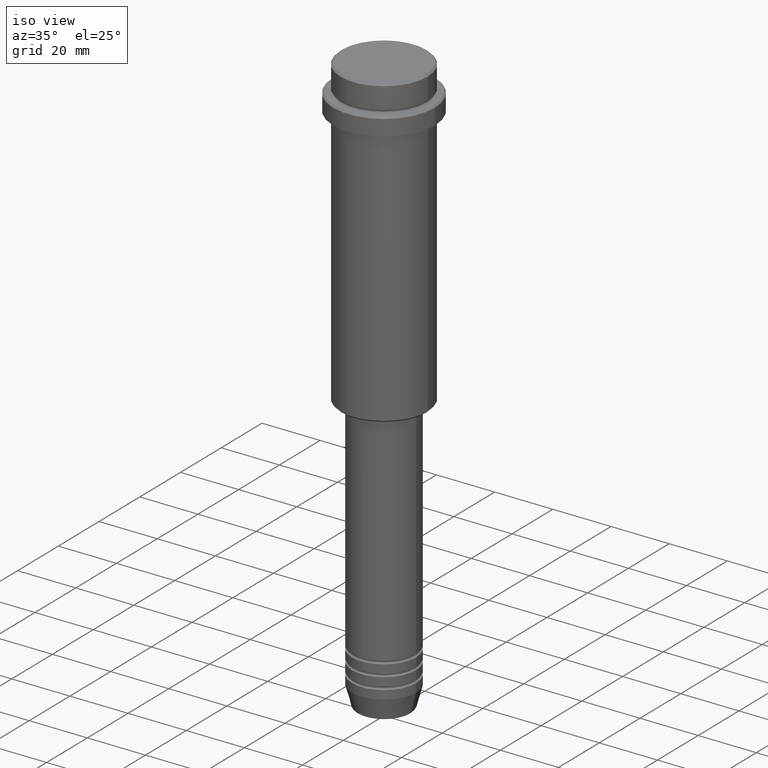
[diagram: clean part render]
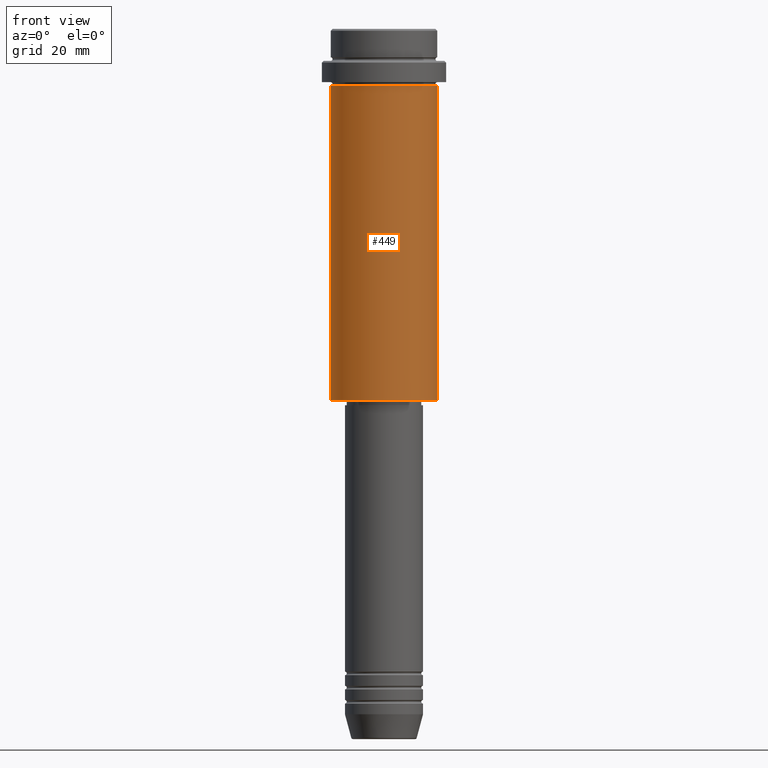
[diagram: tour spotlight — one face highlighted and labeled with its STEP entity id]
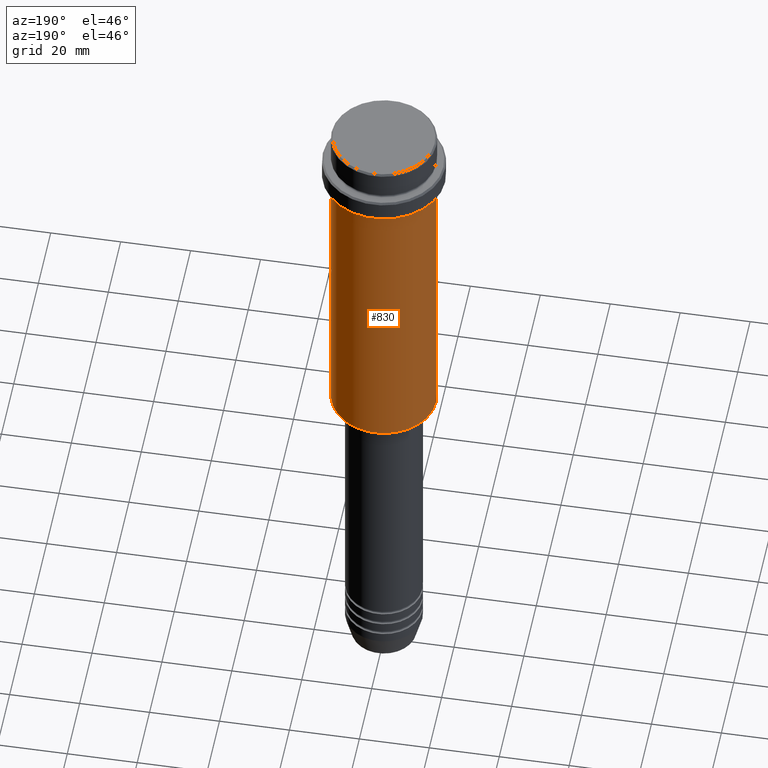
[diagram: tour spotlight — one face highlighted and labeled with its STEP entity id]
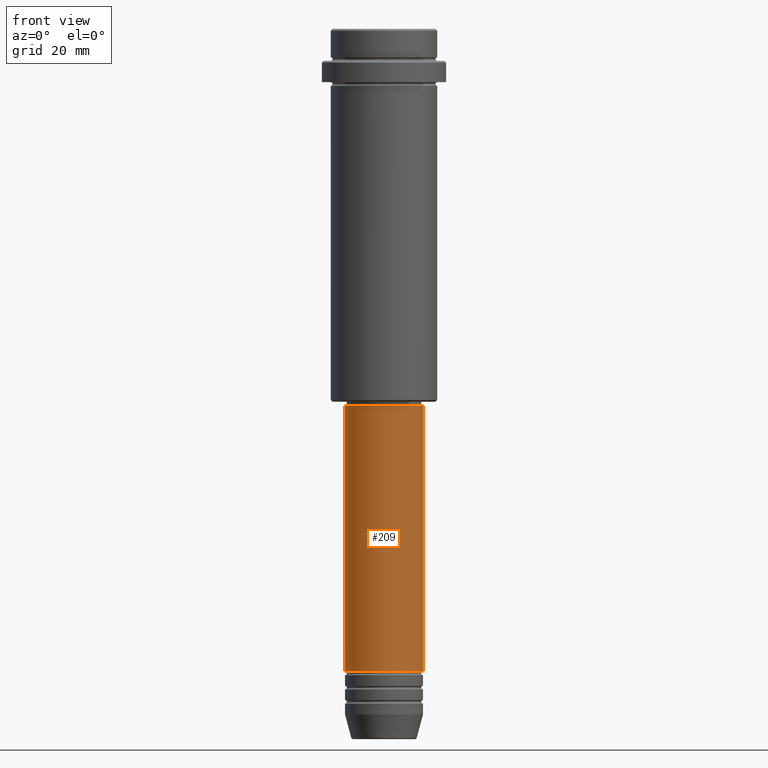
[diagram: tour spotlight — one face highlighted and labeled with its STEP entity id]
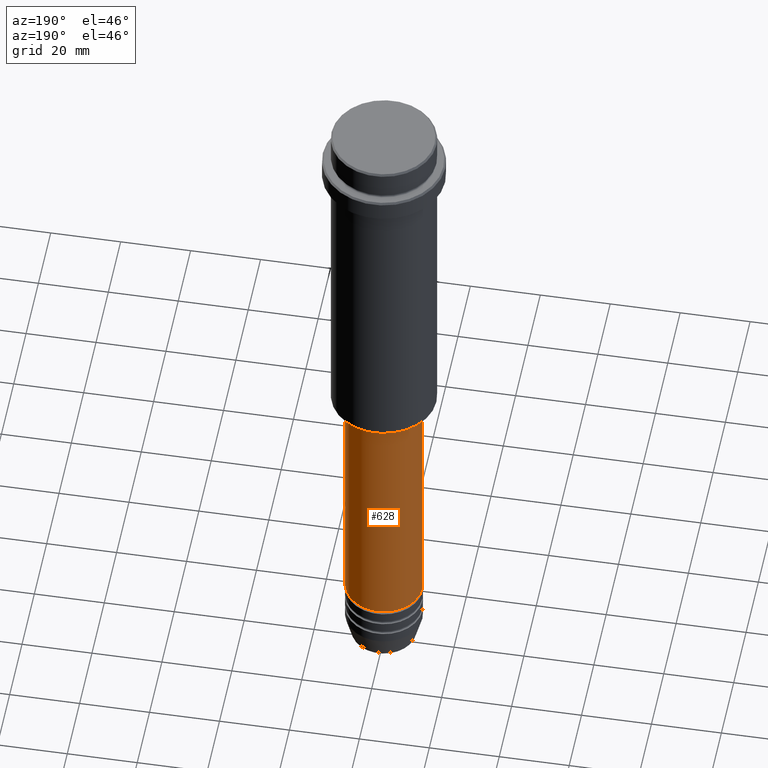
[diagram: tour spotlight — one face highlighted and labeled with its STEP entity id]
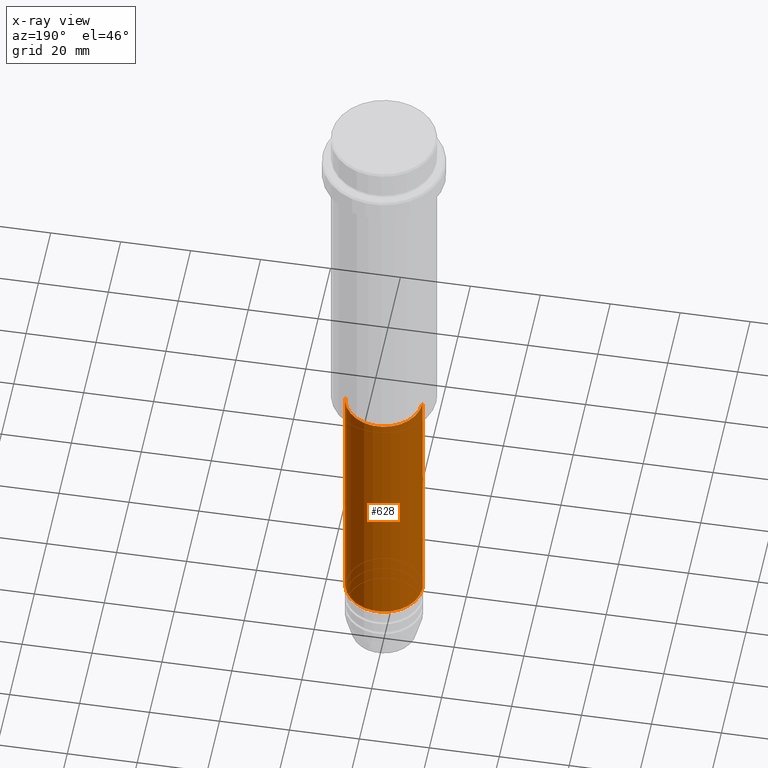
[diagram: x-ray of the same camera — body ghosted, this tour face saturated]
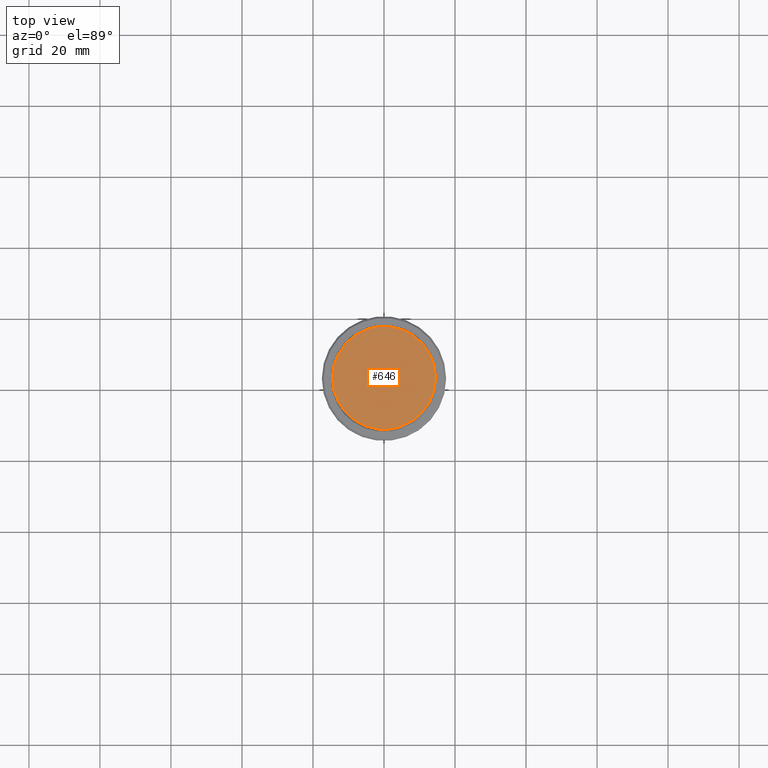
[diagram: tour spotlight — one face highlighted and labeled with its STEP entity id]
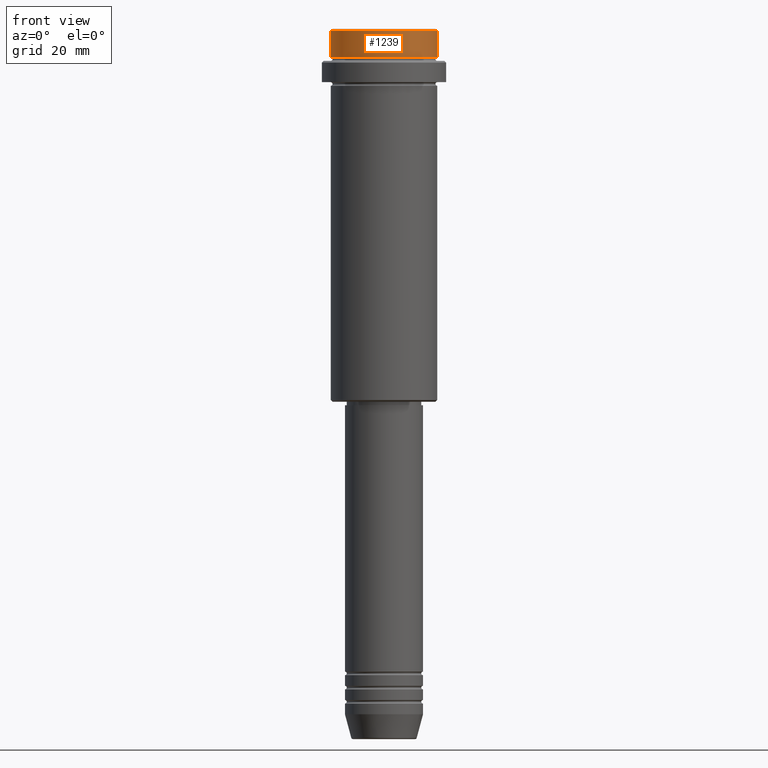
[diagram: tour spotlight — one face highlighted and labeled with its STEP entity id]
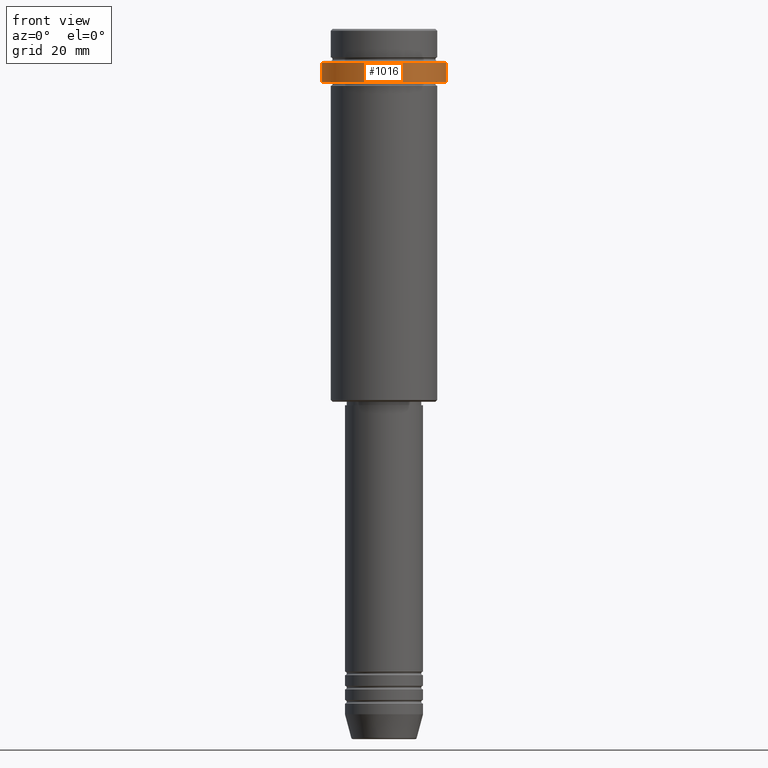
[diagram: tour spotlight — one face highlighted and labeled with its STEP entity id]
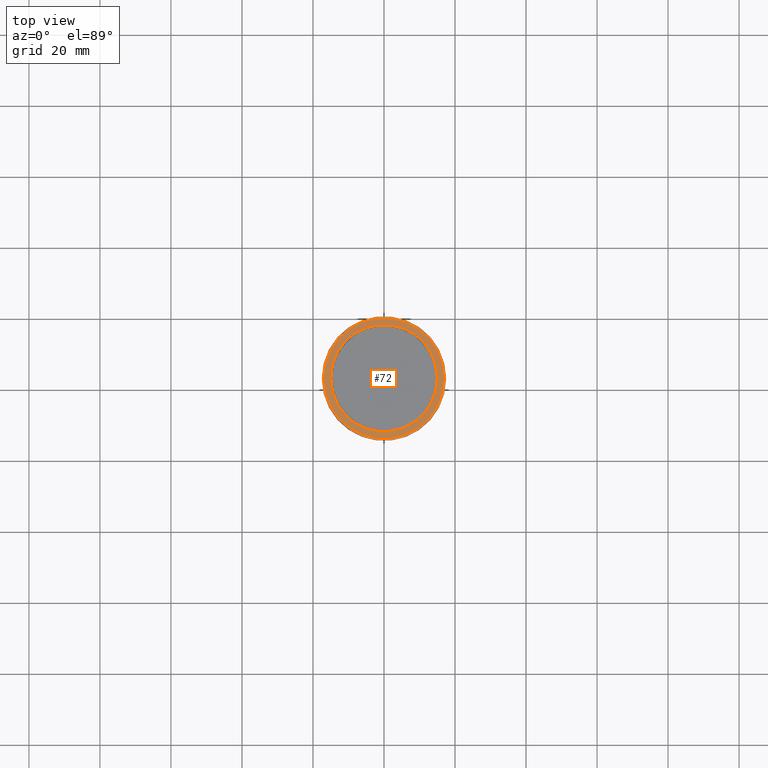
[diagram: tour spotlight — one face highlighted and labeled with its STEP entity id]
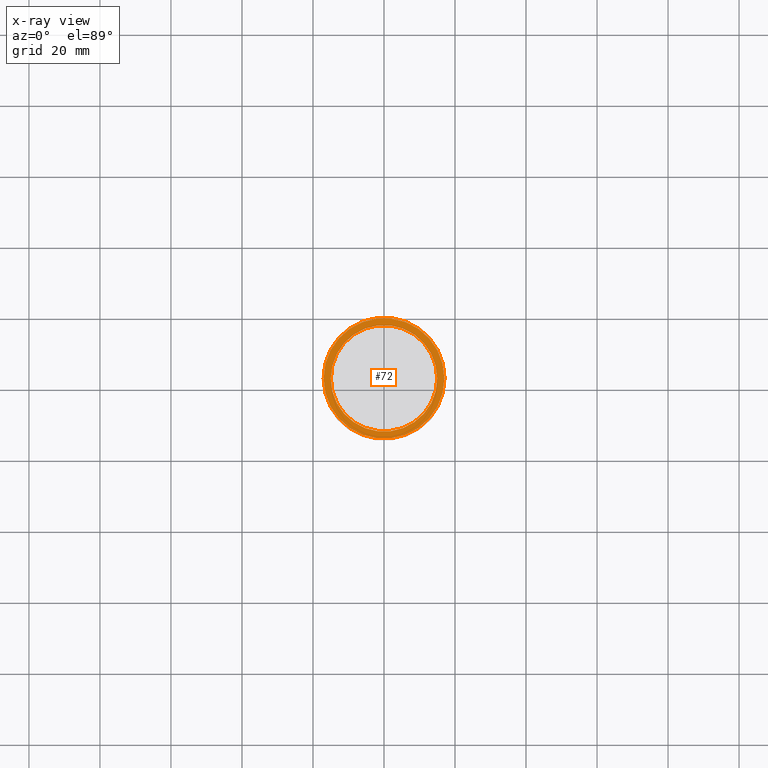
[diagram: x-ray of the same camera — body ghosted, this tour face saturated]
A machine part: a face-by-face anatomy tour. The part has 52 B-rep faces; the first image is the clean iso view, then the 8 largest visible faces are spotlighted one at a time (largest first), each with its STEP entity span.

Face 1 — front view, entity #449. In plain terms, the highlighted cylindrical surface (partial cylindrical patch) has radius 15 mm, axis along (-0, -0, 1).
Definition (entity closure, byte-faithful):
#15 = CARTESIAN_POINT ( 'NONE',  ( 15.00000000000000178, 0.000000000000000000, -16.00000000000000000 ) ) ;
#38 = CIRCLE ( 'NONE', #205, 15.00000000000000178 ) ;
#82 = DIRECTION ( 'NONE',  ( -0.000000000000000000, -0.000000000000000000, 1.000000000000000000 ) ) ;
#86 = AXIS2_PLACEMENT_3D ( 'NONE', #547, #92, #764 ) ;
#92 = DIRECTION ( 'NONE',  ( -0.000000000000000000, -0.000000000000000000, 1.000000000000000000 ) ) ;
#107 = VECTOR ( 'NONE', #471, 1000.000000000000000 ) ;
#116 = DIRECTION ( 'NONE',  ( 1.000000000000000000, 0.000000000000000000, 0.000000000000000000 ) ) ;
#150 = LINE ( 'NONE', #905, #107 ) ;
#163 = EDGE_CURVE ( 'NONE', #566, #244, #150, .T. ) ;
#205 = AXIS2_PLACEMENT_3D ( 'NONE', #526, #82, #116 ) ;
#218 = FACE_OUTER_BOUND ( 'NONE', #261, .T. ) ;
#244 = VERTEX_POINT ( 'NONE', #1040 ) ;
#261 = EDGE_LOOP ( 'NONE', ( #1036, #946, #1197, #1117 ) ) ;
#340 = CARTESIAN_POINT ( 'NONE',  ( 15.00000000000000000, 0.000000000000000000, -104.5000000000000284 ) ) ;
#412 = CIRCLE ( 'NONE', #480, 15.00000000000000000 ) ;
#429 = EDGE_CURVE ( 'NONE', #244, #984, #38, .T. ) ;
#434 = CYLINDRICAL_SURFACE ( 'NONE', #86, 15.00000000000000000 ) ;
#449 = ADVANCED_FACE ( 'NONE', ( #218 ), #434, .T. ) ;
#471 = DIRECTION ( 'NONE',  ( -0.000000000000000000, -0.000000000000000000, 1.000000000000000000 ) ) ;
#480 = AXIS2_PLACEMENT_3D ( 'NONE', #1170, #1306, #949 ) ;
#526 = CARTESIAN_POINT ( 'NONE',  ( 0.000000000000000000, 0.000000000000000000, -16.00000000000000000 ) ) ;
#547 = CARTESIAN_POINT ( 'NONE',  ( 0.000000000000000000, 0.000000000000000000, 0.000000000000000000 ) ) ;
#566 = VERTEX_POINT ( 'NONE', #576 ) ;
#576 = CARTESIAN_POINT ( 'NONE',  ( -15.00000000000000000, 1.836970198721029589E-15, -104.5000000000000284 ) ) ;
#658 = CARTESIAN_POINT ( 'NONE',  ( 15.00000000000000000, 0.000000000000000000, 0.000000000000000000 ) ) ;
#679 = LINE ( 'NONE', #658, #1189 ) ;
#764 = DIRECTION ( 'NONE',  ( 1.000000000000000000, 0.000000000000000000, 0.000000000000000000 ) ) ;
#788 = EDGE_CURVE ( 'NONE', #566, #1311, #412, .T. ) ;
#905 = CARTESIAN_POINT ( 'NONE',  ( -15.00000000000000000, 1.836970198721029589E-15, 0.000000000000000000 ) ) ;
#946 = ORIENTED_EDGE ( 'NONE', *, *, #788, .T. ) ;
#949 = DIRECTION ( 'NONE',  ( -1.000000000000000000, 0.000000000000000000, 0.000000000000000000 ) ) ;
#984 = VERTEX_POINT ( 'NONE', #15 ) ;
#1002 = EDGE_CURVE ( 'NONE', #1311, #984, #679, .T. ) ;
#1036 = ORIENTED_EDGE ( 'NONE', *, *, #163, .F. ) ;
#1040 = CARTESIAN_POINT ( 'NONE',  ( -15.00000000000000355, 1.836970198721029983E-15, -16.00000000000000000 ) ) ;
#1117 = ORIENTED_EDGE ( 'NONE', *, *, #429, .F. ) ;
#1126 = DIRECTION ( 'NONE',  ( -0.000000000000000000, -0.000000000000000000, 1.000000000000000000 ) ) ;
#1170 = CARTESIAN_POINT ( 'NONE',  ( 0.000000000000000000, 0.000000000000000000, -104.5000000000000284 ) ) ;
#1189 = VECTOR ( 'NONE', #1126, 1000.000000000000000 ) ;
#1197 = ORIENTED_EDGE ( 'NONE', *, *, #1002, .T. ) ;
#1306 = DIRECTION ( 'NONE',  ( -0.000000000000000000, -0.000000000000000000, 1.000000000000000000 ) ) ;
#1311 = VERTEX_POINT ( 'NONE', #340 ) ;

Face 2 — auxiliary view, entity #830. In plain terms, the highlighted cylindrical surface (partial cylindrical patch) has radius 15 mm, axis along (-0, -0, 1).
Definition (entity closure, byte-faithful):
#15 = CARTESIAN_POINT ( 'NONE',  ( 15.00000000000000178, 0.000000000000000000, -16.00000000000000000 ) ) ;
#107 = VECTOR ( 'NONE', #471, 1000.000000000000000 ) ;
#150 = LINE ( 'NONE', #905, #107 ) ;
#163 = EDGE_CURVE ( 'NONE', #566, #244, #150, .T. ) ;
#195 = CYLINDRICAL_SURFACE ( 'NONE', #1364, 15.00000000000000000 ) ;
#200 = DIRECTION ( 'NONE',  ( 1.000000000000000000, 0.000000000000000000, 0.000000000000000000 ) ) ;
#208 = AXIS2_PLACEMENT_3D ( 'NONE', #611, #284, #1024 ) ;
#222 = ORIENTED_EDGE ( 'NONE', *, *, #1048, .T. ) ;
#244 = VERTEX_POINT ( 'NONE', #1040 ) ;
#246 = DIRECTION ( 'NONE',  ( -1.000000000000000000, 0.000000000000000000, 0.000000000000000000 ) ) ;
#284 = DIRECTION ( 'NONE',  ( -0.000000000000000000, -0.000000000000000000, 1.000000000000000000 ) ) ;
#320 = CARTESIAN_POINT ( 'NONE',  ( 0.000000000000000000, 0.000000000000000000, 0.000000000000000000 ) ) ;
#340 = CARTESIAN_POINT ( 'NONE',  ( 15.00000000000000000, 0.000000000000000000, -104.5000000000000284 ) ) ;
#354 = DIRECTION ( 'NONE',  ( -0.000000000000000000, -0.000000000000000000, 1.000000000000000000 ) ) ;
#471 = DIRECTION ( 'NONE',  ( -0.000000000000000000, -0.000000000000000000, 1.000000000000000000 ) ) ;
#519 = ORIENTED_EDGE ( 'NONE', *, *, #690, .F. ) ;
#566 = VERTEX_POINT ( 'NONE', #576 ) ;
#576 = CARTESIAN_POINT ( 'NONE',  ( -15.00000000000000000, 1.836970198721029589E-15, -104.5000000000000284 ) ) ;
#611 = CARTESIAN_POINT ( 'NONE',  ( 0.000000000000000000, 0.000000000000000000, -16.00000000000000000 ) ) ;
#640 = AXIS2_PLACEMENT_3D ( 'NONE', #1331, #354, #246 ) ;
#658 = CARTESIAN_POINT ( 'NONE',  ( 15.00000000000000000, 0.000000000000000000, 0.000000000000000000 ) ) ;
#667 = EDGE_LOOP ( 'NONE', ( #222, #871, #519, #725 ) ) ;
#679 = LINE ( 'NONE', #658, #1189 ) ;
#690 = EDGE_CURVE ( 'NONE', #984, #244, #1101, .T. ) ;
#725 = ORIENTED_EDGE ( 'NONE', *, *, #1002, .F. ) ;
#768 = DIRECTION ( 'NONE',  ( -0.000000000000000000, -0.000000000000000000, 1.000000000000000000 ) ) ;
#830 = ADVANCED_FACE ( 'NONE', ( #1397 ), #195, .T. ) ;
#871 = ORIENTED_EDGE ( 'NONE', *, *, #163, .T. ) ;
#905 = CARTESIAN_POINT ( 'NONE',  ( -15.00000000000000000, 1.836970198721029589E-15, 0.000000000000000000 ) ) ;
#984 = VERTEX_POINT ( 'NONE', #15 ) ;
#1002 = EDGE_CURVE ( 'NONE', #1311, #984, #679, .T. ) ;
#1024 = DIRECTION ( 'NONE',  ( 1.000000000000000000, 0.000000000000000000, 0.000000000000000000 ) ) ;
#1040 = CARTESIAN_POINT ( 'NONE',  ( -15.00000000000000355, 1.836970198721029983E-15, -16.00000000000000000 ) ) ;
#1048 = EDGE_CURVE ( 'NONE', #1311, #566, #1412, .T. ) ;
#1101 = CIRCLE ( 'NONE', #208, 15.00000000000000178 ) ;
#1126 = DIRECTION ( 'NONE',  ( -0.000000000000000000, -0.000000000000000000, 1.000000000000000000 ) ) ;
#1189 = VECTOR ( 'NONE', #1126, 1000.000000000000000 ) ;
#1311 = VERTEX_POINT ( 'NONE', #340 ) ;
#1331 = CARTESIAN_POINT ( 'NONE',  ( 0.000000000000000000, 0.000000000000000000, -104.5000000000000284 ) ) ;
#1364 = AXIS2_PLACEMENT_3D ( 'NONE', #320, #768, #200 ) ;
#1397 = FACE_OUTER_BOUND ( 'NONE', #667, .T. ) ;
#1412 = CIRCLE ( 'NONE', #640, 15.00000000000000000 ) ;

Face 3 — front view, entity #209. In plain terms, the highlighted cylindrical surface (partial cylindrical patch) has radius 11 mm, axis along (-0, -0, 1).
Definition (entity closure, byte-faithful):
#63 = VERTEX_POINT ( 'NONE', #974 ) ;
#161 = EDGE_LOOP ( 'NONE', ( #579, #615, #785, #221 ) ) ;
#209 = ADVANCED_FACE ( 'NONE', ( #264 ), #369, .T. ) ;
#217 = EDGE_CURVE ( 'NONE', #800, #63, #1116, .T. ) ;
#221 = ORIENTED_EDGE ( 'NONE', *, *, #328, .F. ) ;
#264 = FACE_OUTER_BOUND ( 'NONE', #161, .T. ) ;
#328 = EDGE_CURVE ( 'NONE', #63, #1294, #1254, .T. ) ;
#369 = CYLINDRICAL_SURFACE ( 'NONE', #936, 11.00000000000000000 ) ;
#374 = CARTESIAN_POINT ( 'NONE',  ( -11.00000000000000000, 1.347111479062088405E-15, 0.000000000000000000 ) ) ;
#446 = CARTESIAN_POINT ( 'NONE',  ( 10.99999999999999822, 0.000000000000000000, -106.0000000000000142 ) ) ;
#489 = EDGE_CURVE ( 'NONE', #840, #1294, #746, .T. ) ;
#533 = CARTESIAN_POINT ( 'NONE',  ( 0.000000000000000000, 0.000000000000000000, -180.9999999999998863 ) ) ;
#579 = ORIENTED_EDGE ( 'NONE', *, *, #217, .F. ) ;
#615 = ORIENTED_EDGE ( 'NONE', *, *, #796, .T. ) ;
#630 = CARTESIAN_POINT ( 'NONE',  ( 11.00000000000000000, 0.000000000000000000, -180.9999999999998863 ) ) ;
#676 = DIRECTION ( 'NONE',  ( -0.000000000000000000, -0.000000000000000000, 1.000000000000000000 ) ) ;
#705 = AXIS2_PLACEMENT_3D ( 'NONE', #716, #1154, #1034 ) ;
#716 = CARTESIAN_POINT ( 'NONE',  ( 0.000000000000000000, 0.000000000000000000, -106.0000000000000142 ) ) ;
#746 = LINE ( 'NONE', #1416, #891 ) ;
#785 = ORIENTED_EDGE ( 'NONE', *, *, #489, .T. ) ;
#796 = EDGE_CURVE ( 'NONE', #800, #840, #1323, .T. ) ;
#800 = VERTEX_POINT ( 'NONE', #1074 ) ;
#840 = VERTEX_POINT ( 'NONE', #630 ) ;
#877 = DIRECTION ( 'NONE',  ( -0.000000000000000000, -0.000000000000000000, 1.000000000000000000 ) ) ;
#891 = VECTOR ( 'NONE', #877, 1000.000000000000000 ) ;
#936 = AXIS2_PLACEMENT_3D ( 'NONE', #1222, #676, #1234 ) ;
#974 = CARTESIAN_POINT ( 'NONE',  ( -10.99999999999999822, 1.347111479062088207E-15, -106.0000000000000142 ) ) ;
#1020 = DIRECTION ( 'NONE',  ( -0.000000000000000000, -0.000000000000000000, 1.000000000000000000 ) ) ;
#1034 = DIRECTION ( 'NONE',  ( 1.000000000000000000, 0.000000000000000000, 0.000000000000000000 ) ) ;
#1074 = CARTESIAN_POINT ( 'NONE',  ( -11.00000000000000000, 1.347111479062088405E-15, -180.9999999999998863 ) ) ;
#1097 = AXIS2_PLACEMENT_3D ( 'NONE', #533, #1191, #1283 ) ;
#1116 = LINE ( 'NONE', #374, #1279 ) ;
#1154 = DIRECTION ( 'NONE',  ( -0.000000000000000000, -0.000000000000000000, 1.000000000000000000 ) ) ;
#1191 = DIRECTION ( 'NONE',  ( -0.000000000000000000, -0.000000000000000000, 1.000000000000000000 ) ) ;
#1222 = CARTESIAN_POINT ( 'NONE',  ( 0.000000000000000000, 0.000000000000000000, 0.000000000000000000 ) ) ;
#1234 = DIRECTION ( 'NONE',  ( 1.000000000000000000, 0.000000000000000000, 0.000000000000000000 ) ) ;
#1254 = CIRCLE ( 'NONE', #705, 10.99999999999999822 ) ;
#1279 = VECTOR ( 'NONE', #1020, 1000.000000000000000 ) ;
#1283 = DIRECTION ( 'NONE',  ( 1.000000000000000000, 0.000000000000000000, 0.000000000000000000 ) ) ;
#1294 = VERTEX_POINT ( 'NONE', #446 ) ;
#1323 = CIRCLE ( 'NONE', #1097, 11.00000000000000000 ) ;
#1416 = CARTESIAN_POINT ( 'NONE',  ( 11.00000000000000000, 0.000000000000000000, 0.000000000000000000 ) ) ;

Face 4 — auxiliary view, entity #628. An x-ray twin of the same camera follows (body ghosted, this face saturated) — the face is partly hidden behind the body. In plain terms, the highlighted cylindrical surface (partial cylindrical patch) has radius 11 mm, axis along (-0, -0, 1).
Definition (entity closure, byte-faithful):
#19 = DIRECTION ( 'NONE',  ( 1.000000000000000000, 0.000000000000000000, 0.000000000000000000 ) ) ;
#20 = EDGE_CURVE ( 'NONE', #1294, #63, #272, .T. ) ;
#63 = VERTEX_POINT ( 'NONE', #974 ) ;
#217 = EDGE_CURVE ( 'NONE', #800, #63, #1116, .T. ) ;
#225 = DIRECTION ( 'NONE',  ( -0.000000000000000000, -0.000000000000000000, 1.000000000000000000 ) ) ;
#250 = ORIENTED_EDGE ( 'NONE', *, *, #217, .T. ) ;
#258 = CYLINDRICAL_SURFACE ( 'NONE', #462, 11.00000000000000000 ) ;
#270 = ORIENTED_EDGE ( 'NONE', *, *, #1110, .T. ) ;
#272 = CIRCLE ( 'NONE', #1096, 10.99999999999999822 ) ;
#346 = EDGE_LOOP ( 'NONE', ( #270, #250, #744, #1330 ) ) ;
#374 = CARTESIAN_POINT ( 'NONE',  ( -11.00000000000000000, 1.347111479062088405E-15, 0.000000000000000000 ) ) ;
#446 = CARTESIAN_POINT ( 'NONE',  ( 10.99999999999999822, 0.000000000000000000, -106.0000000000000142 ) ) ;
#462 = AXIS2_PLACEMENT_3D ( 'NONE', #786, #1019, #19 ) ;
#481 = DIRECTION ( 'NONE',  ( -0.000000000000000000, -0.000000000000000000, 1.000000000000000000 ) ) ;
#489 = EDGE_CURVE ( 'NONE', #840, #1294, #746, .T. ) ;
#628 = ADVANCED_FACE ( 'NONE', ( #1107 ), #258, .T. ) ;
#630 = CARTESIAN_POINT ( 'NONE',  ( 11.00000000000000000, 0.000000000000000000, -180.9999999999998863 ) ) ;
#744 = ORIENTED_EDGE ( 'NONE', *, *, #20, .F. ) ;
#746 = LINE ( 'NONE', #1416, #891 ) ;
#765 = CARTESIAN_POINT ( 'NONE',  ( 0.000000000000000000, 0.000000000000000000, -106.0000000000000142 ) ) ;
#786 = CARTESIAN_POINT ( 'NONE',  ( 0.000000000000000000, 0.000000000000000000, 0.000000000000000000 ) ) ;
#800 = VERTEX_POINT ( 'NONE', #1074 ) ;
#840 = VERTEX_POINT ( 'NONE', #630 ) ;
#877 = DIRECTION ( 'NONE',  ( -0.000000000000000000, -0.000000000000000000, 1.000000000000000000 ) ) ;
#891 = VECTOR ( 'NONE', #877, 1000.000000000000000 ) ;
#927 = CARTESIAN_POINT ( 'NONE',  ( 0.000000000000000000, 0.000000000000000000, -180.9999999999998863 ) ) ;
#937 = AXIS2_PLACEMENT_3D ( 'NONE', #927, #481, #1242 ) ;
#974 = CARTESIAN_POINT ( 'NONE',  ( -10.99999999999999822, 1.347111479062088207E-15, -106.0000000000000142 ) ) ;
#1019 = DIRECTION ( 'NONE',  ( -0.000000000000000000, -0.000000000000000000, 1.000000000000000000 ) ) ;
#1020 = DIRECTION ( 'NONE',  ( -0.000000000000000000, -0.000000000000000000, 1.000000000000000000 ) ) ;
#1074 = CARTESIAN_POINT ( 'NONE',  ( -11.00000000000000000, 1.347111479062088405E-15, -180.9999999999998863 ) ) ;
#1096 = AXIS2_PLACEMENT_3D ( 'NONE', #765, #225, #1394 ) ;
#1107 = FACE_OUTER_BOUND ( 'NONE', #346, .T. ) ;
#1110 = EDGE_CURVE ( 'NONE', #840, #800, #1142, .T. ) ;
#1116 = LINE ( 'NONE', #374, #1279 ) ;
#1142 = CIRCLE ( 'NONE', #937, 11.00000000000000000 ) ;
#1242 = DIRECTION ( 'NONE',  ( 1.000000000000000000, 0.000000000000000000, 0.000000000000000000 ) ) ;
#1279 = VECTOR ( 'NONE', #1020, 1000.000000000000000 ) ;
#1294 = VERTEX_POINT ( 'NONE', #446 ) ;
#1330 = ORIENTED_EDGE ( 'NONE', *, *, #489, .F. ) ;
#1394 = DIRECTION ( 'NONE',  ( 1.000000000000000000, 0.000000000000000000, 0.000000000000000000 ) ) ;
#1416 = CARTESIAN_POINT ( 'NONE',  ( 11.00000000000000000, 0.000000000000000000, 0.000000000000000000 ) ) ;

Face 5 — top view, entity #646. In plain terms, the highlighted planar face has unit normal (0, -0, 1).
Definition (entity closure, byte-faithful):
#78 = CARTESIAN_POINT ( 'NONE',  ( -14.49999999999998401, 0.000000000000000000, 0.000000000000000000 ) ) ;
#122 = CARTESIAN_POINT ( 'NONE',  ( 0.000000000000000000, 0.000000000000000000, 0.000000000000000000 ) ) ;
#198 = CARTESIAN_POINT ( 'NONE',  ( 14.49999999999998401, 1.806354028742345013E-15, 0.000000000000000000 ) ) ;
#304 = AXIS2_PLACEMENT_3D ( 'NONE', #122, #457, #1275 ) ;
#386 = CIRCLE ( 'NONE', #934, 14.49999999999998401 ) ;
#395 = ORIENTED_EDGE ( 'NONE', *, *, #779, .T. ) ;
#401 = ORIENTED_EDGE ( 'NONE', *, *, #810, .T. ) ;
#411 = CARTESIAN_POINT ( 'NONE',  ( 0.000000000000000000, 0.000000000000000000, 0.000000000000000000 ) ) ;
#457 = DIRECTION ( 'NONE',  ( 0.000000000000000000, -0.000000000000000000, 1.000000000000000000 ) ) ;
#502 = CARTESIAN_POINT ( 'NONE',  ( 0.000000000000000000, 0.000000000000000000, 0.000000000000000000 ) ) ;
#646 = ADVANCED_FACE ( 'NONE', ( #790 ), #669, .T. ) ;
#669 = PLANE ( 'NONE',  #304 ) ;
#779 = EDGE_CURVE ( 'NONE', #1208, #1174, #1410, .T. ) ;
#790 = FACE_OUTER_BOUND ( 'NONE', #1374, .T. ) ;
#810 = EDGE_CURVE ( 'NONE', #1174, #1208, #386, .T. ) ;
#838 = DIRECTION ( 'NONE',  ( 1.000000000000000000, 0.000000000000000000, 0.000000000000000000 ) ) ;
#844 = DIRECTION ( 'NONE',  ( -0.000000000000000000, -0.000000000000000000, 1.000000000000000000 ) ) ;
#889 = AXIS2_PLACEMENT_3D ( 'NONE', #502, #939, #838 ) ;
#934 = AXIS2_PLACEMENT_3D ( 'NONE', #411, #844, #1081 ) ;
#939 = DIRECTION ( 'NONE',  ( -0.000000000000000000, -0.000000000000000000, 1.000000000000000000 ) ) ;
#1081 = DIRECTION ( 'NONE',  ( 1.000000000000000000, 0.000000000000000000, 0.000000000000000000 ) ) ;
#1174 = VERTEX_POINT ( 'NONE', #198 ) ;
#1208 = VERTEX_POINT ( 'NONE', #78 ) ;
#1275 = DIRECTION ( 'NONE',  ( 1.000000000000000000, 0.000000000000000000, 0.000000000000000000 ) ) ;
#1374 = EDGE_LOOP ( 'NONE', ( #395, #401 ) ) ;
#1410 = CIRCLE ( 'NONE', #889, 14.49999999999998401 ) ;

Face 6 — front view, entity #1239. In plain terms, the highlighted cylindrical surface (partial cylindrical patch) has radius 15 mm, axis along (-0, -0, 1).
Definition (entity closure, byte-faithful):
#35 = DIRECTION ( 'NONE',  ( -0.000000000000000000, -0.000000000000000000, 1.000000000000000000 ) ) ;
#41 = AXIS2_PLACEMENT_3D ( 'NONE', #1055, #918, #699 ) ;
#43 = ORIENTED_EDGE ( 'NONE', *, *, #140, .T. ) ;
#45 = CARTESIAN_POINT ( 'NONE',  ( -15.00000000000000000, 1.836970198721029589E-15, -7.999999999999998224 ) ) ;
#47 = CARTESIAN_POINT ( 'NONE',  ( 15.00000000000000000, 0.000000000000000000, -7.999999999999998224 ) ) ;
#64 = AXIS2_PLACEMENT_3D ( 'NONE', #1130, #35, #1401 ) ;
#140 = EDGE_CURVE ( 'NONE', #353, #1043, #890, .T. ) ;
#170 = CARTESIAN_POINT ( 'NONE',  ( 0.000000000000000000, 0.000000000000000000, -0.5000000000000108802 ) ) ;
#185 = ORIENTED_EDGE ( 'NONE', *, *, #1402, .F. ) ;
#237 = DIRECTION ( 'NONE',  ( -0.000000000000000000, -0.000000000000000000, 1.000000000000000000 ) ) ;
#271 = DIRECTION ( 'NONE',  ( 0.000000000000000000, 0.000000000000000000, -1.000000000000000000 ) ) ;
#278 = CIRCLE ( 'NONE', #41, 15.00000000000000000 ) ;
#353 = VERTEX_POINT ( 'NONE', #47 ) ;
#448 = ORIENTED_EDGE ( 'NONE', *, *, #654, .T. ) ;
#455 = VERTEX_POINT ( 'NONE', #1393 ) ;
#466 = CARTESIAN_POINT ( 'NONE',  ( 15.00000000000000000, 0.000000000000000000, 0.000000000000000000 ) ) ;
#531 = FACE_OUTER_BOUND ( 'NONE', #1141, .T. ) ;
#553 = AXIS2_PLACEMENT_3D ( 'NONE', #170, #271, #610 ) ;
#559 = LINE ( 'NONE', #872, #1030 ) ;
#610 = DIRECTION ( 'NONE',  ( 1.000000000000000000, 0.000000000000000000, 0.000000000000000000 ) ) ;
#623 = ORIENTED_EDGE ( 'NONE', *, *, #1187, .T. ) ;
#654 = EDGE_CURVE ( 'NONE', #1086, #353, #278, .T. ) ;
#693 = CYLINDRICAL_SURFACE ( 'NONE', #64, 15.00000000000000000 ) ;
#699 = DIRECTION ( 'NONE',  ( 1.000000000000000000, 0.000000000000000000, 0.000000000000000000 ) ) ;
#872 = CARTESIAN_POINT ( 'NONE',  ( -15.00000000000000000, 1.836970198721029589E-15, 0.000000000000000000 ) ) ;
#890 = LINE ( 'NONE', #466, #1165 ) ;
#918 = DIRECTION ( 'NONE',  ( -0.000000000000000000, -0.000000000000000000, 1.000000000000000000 ) ) ;
#1001 = CARTESIAN_POINT ( 'NONE',  ( 15.00000000000000000, 0.000000000000000000, -0.5000000000000108802 ) ) ;
#1030 = VECTOR ( 'NONE', #1218, 1000.000000000000000 ) ;
#1043 = VERTEX_POINT ( 'NONE', #1001 ) ;
#1055 = CARTESIAN_POINT ( 'NONE',  ( 0.000000000000000000, 0.000000000000000000, -7.999999999999998224 ) ) ;
#1086 = VERTEX_POINT ( 'NONE', #45 ) ;
#1130 = CARTESIAN_POINT ( 'NONE',  ( 0.000000000000000000, 0.000000000000000000, 0.000000000000000000 ) ) ;
#1141 = EDGE_LOOP ( 'NONE', ( #185, #448, #43, #623 ) ) ;
#1165 = VECTOR ( 'NONE', #237, 1000.000000000000000 ) ;
#1187 = EDGE_CURVE ( 'NONE', #1043, #455, #1256, .T. ) ;
#1218 = DIRECTION ( 'NONE',  ( -0.000000000000000000, -0.000000000000000000, 1.000000000000000000 ) ) ;
#1239 = ADVANCED_FACE ( 'NONE', ( #531 ), #693, .T. ) ;
#1256 = CIRCLE ( 'NONE', #553, 15.00000000000000000 ) ;
#1393 = CARTESIAN_POINT ( 'NONE',  ( -15.00000000000000000, 1.836970198721029589E-15, -0.5000000000000108802 ) ) ;
#1401 = DIRECTION ( 'NONE',  ( 1.000000000000000000, 0.000000000000000000, 0.000000000000000000 ) ) ;
#1402 = EDGE_CURVE ( 'NONE', #1086, #455, #559, .T. ) ;

Face 7 — front view, entity #1016. In plain terms, the highlighted cylindrical surface (partial cylindrical patch) has radius 17.5 mm, axis along (-0, -0, 1).
Definition (entity closure, byte-faithful):
#85 = AXIS2_PLACEMENT_3D ( 'NONE', #342, #1316, #1340 ) ;
#149 = CARTESIAN_POINT ( 'NONE',  ( 17.50000000000000000, 0.000000000000000000, 0.000000000000000000 ) ) ;
#199 = VERTEX_POINT ( 'NONE', #1352 ) ;
#216 = LINE ( 'NONE', #546, #842 ) ;
#231 = ORIENTED_EDGE ( 'NONE', *, *, #995, .T. ) ;
#232 = CIRCLE ( 'NONE', #980, 17.50000000000000000 ) ;
#266 = CARTESIAN_POINT ( 'NONE',  ( 0.000000000000000000, 0.000000000000000000, -9.500000000000000000 ) ) ;
#312 = DIRECTION ( 'NONE',  ( 1.000000000000000000, 0.000000000000000000, 0.000000000000000000 ) ) ;
#342 = CARTESIAN_POINT ( 'NONE',  ( 0.000000000000000000, 0.000000000000000000, -15.00000000000000000 ) ) ;
#424 = VERTEX_POINT ( 'NONE', #972 ) ;
#426 = VERTEX_POINT ( 'NONE', #1398 ) ;
#469 = DIRECTION ( 'NONE',  ( 1.000000000000000000, 0.000000000000000000, 0.000000000000000000 ) ) ;
#546 = CARTESIAN_POINT ( 'NONE',  ( -17.50000000000000000, 2.143131898507868248E-15, 0.000000000000000000 ) ) ;
#568 = EDGE_CURVE ( 'NONE', #426, #1375, #1215, .T. ) ;
#590 = CIRCLE ( 'NONE', #85, 17.50000000000000000 ) ;
#737 = EDGE_LOOP ( 'NONE', ( #1353, #231, #970, #962 ) ) ;
#776 = AXIS2_PLACEMENT_3D ( 'NONE', #881, #1321, #469 ) ;
#842 = VECTOR ( 'NONE', #977, 1000.000000000000000 ) ;
#881 = CARTESIAN_POINT ( 'NONE',  ( 0.000000000000000000, 0.000000000000000000, 0.000000000000000000 ) ) ;
#908 = FACE_OUTER_BOUND ( 'NONE', #737, .T. ) ;
#916 = VECTOR ( 'NONE', #1014, 1000.000000000000000 ) ;
#923 = EDGE_CURVE ( 'NONE', #199, #424, #216, .T. ) ;
#962 = ORIENTED_EDGE ( 'NONE', *, *, #1111, .T. ) ;
#970 = ORIENTED_EDGE ( 'NONE', *, *, #568, .T. ) ;
#972 = CARTESIAN_POINT ( 'NONE',  ( -17.50000000000000000, 2.143131898507868248E-15, -9.500000000000000000 ) ) ;
#977 = DIRECTION ( 'NONE',  ( -0.000000000000000000, -0.000000000000000000, 1.000000000000000000 ) ) ;
#980 = AXIS2_PLACEMENT_3D ( 'NONE', #266, #1395, #312 ) ;
#995 = EDGE_CURVE ( 'NONE', #199, #426, #590, .T. ) ;
#1014 = DIRECTION ( 'NONE',  ( -0.000000000000000000, -0.000000000000000000, 1.000000000000000000 ) ) ;
#1016 = ADVANCED_FACE ( 'NONE', ( #908 ), #1220, .T. ) ;
#1111 = EDGE_CURVE ( 'NONE', #1375, #424, #232, .T. ) ;
#1215 = LINE ( 'NONE', #149, #916 ) ;
#1220 = CYLINDRICAL_SURFACE ( 'NONE', #776, 17.50000000000000000 ) ;
#1293 = CARTESIAN_POINT ( 'NONE',  ( 17.50000000000000000, 0.000000000000000000, -9.500000000000000000 ) ) ;
#1316 = DIRECTION ( 'NONE',  ( -0.000000000000000000, -0.000000000000000000, 1.000000000000000000 ) ) ;
#1321 = DIRECTION ( 'NONE',  ( -0.000000000000000000, -0.000000000000000000, 1.000000000000000000 ) ) ;
#1340 = DIRECTION ( 'NONE',  ( 1.000000000000000000, 0.000000000000000000, 0.000000000000000000 ) ) ;
#1352 = CARTESIAN_POINT ( 'NONE',  ( -17.50000000000000000, 2.143131898507868248E-15, -15.00000000000000000 ) ) ;
#1353 = ORIENTED_EDGE ( 'NONE', *, *, #923, .F. ) ;
#1375 = VERTEX_POINT ( 'NONE', #1293 ) ;
#1395 = DIRECTION ( 'NONE',  ( 0.000000000000000000, 0.000000000000000000, -1.000000000000000000 ) ) ;
#1398 = CARTESIAN_POINT ( 'NONE',  ( 17.50000000000000000, 0.000000000000000000, -15.00000000000000000 ) ) ;

Face 8 — top view, entity #72. An x-ray twin of the same camera follows (body ghosted, this face saturated) — the face is partly hidden behind the body. In plain terms, the highlighted planar face has unit normal (0, -0, 1).
Definition (entity closure, byte-faithful):
#58 = EDGE_CURVE ( 'NONE', #944, #142, #1322, .T. ) ;
#72 = ADVANCED_FACE ( 'NONE', ( #316, #641 ), #777, .T. ) ;
#73 = EDGE_LOOP ( 'NONE', ( #968, #914 ) ) ;
#100 = DIRECTION ( 'NONE',  ( -0.000000000000000000, -0.000000000000000000, 1.000000000000000000 ) ) ;
#142 = VERTEX_POINT ( 'NONE', #1227 ) ;
#202 = DIRECTION ( 'NONE',  ( 1.000000000000000000, 0.000000000000000000, 0.000000000000000000 ) ) ;
#315 = CARTESIAN_POINT ( 'NONE',  ( -14.99999999999999289, 1.836970198721028800E-15, -9.000000000000000000 ) ) ;
#316 = FACE_OUTER_BOUND ( 'NONE', #464, .T. ) ;
#338 = DIRECTION ( 'NONE',  ( 1.000000000000000000, 0.000000000000000000, 0.000000000000000000 ) ) ;
#360 = CARTESIAN_POINT ( 'NONE',  ( 0.000000000000000000, 0.000000000000000000, -9.000000000000000000 ) ) ;
#387 = CIRCLE ( 'NONE', #1192, 14.99999999999999289 ) ;
#418 = ORIENTED_EDGE ( 'NONE', *, *, #472, .T. ) ;
#442 = VERTEX_POINT ( 'NONE', #315 ) ;
#463 = CARTESIAN_POINT ( 'NONE',  ( 16.99999999999998579, 2.112515728529183278E-15, -9.000000000000000000 ) ) ;
#464 = EDGE_LOOP ( 'NONE', ( #418, #1358 ) ) ;
#472 = EDGE_CURVE ( 'NONE', #142, #944, #982, .T. ) ;
#520 = CARTESIAN_POINT ( 'NONE',  ( 0.000000000000000000, 0.000000000000000000, -9.000000000000000000 ) ) ;
#529 = AXIS2_PLACEMENT_3D ( 'NONE', #360, #1326, #675 ) ;
#542 = DIRECTION ( 'NONE',  ( 1.000000000000000000, 0.000000000000000000, 0.000000000000000000 ) ) ;
#599 = VERTEX_POINT ( 'NONE', #1003 ) ;
#612 = EDGE_CURVE ( 'NONE', #599, #442, #758, .T. ) ;
#641 = FACE_BOUND ( 'NONE', #73, .T. ) ;
#675 = DIRECTION ( 'NONE',  ( 1.000000000000000000, 0.000000000000000000, 0.000000000000000000 ) ) ;
#758 = CIRCLE ( 'NONE', #529, 14.99999999999999289 ) ;
#759 = DIRECTION ( 'NONE',  ( 0.000000000000000000, -0.000000000000000000, 1.000000000000000000 ) ) ;
#777 = PLANE ( 'NONE',  #933 ) ;
#883 = CARTESIAN_POINT ( 'NONE',  ( 0.000000000000000000, 0.000000000000000000, -9.000000000000000000 ) ) ;
#914 = ORIENTED_EDGE ( 'NONE', *, *, #1224, .T. ) ;
#933 = AXIS2_PLACEMENT_3D ( 'NONE', #1078, #759, #542 ) ;
#944 = VERTEX_POINT ( 'NONE', #463 ) ;
#953 = DIRECTION ( 'NONE',  ( 0.000000000000000000, 0.000000000000000000, -1.000000000000000000 ) ) ;
#966 = CARTESIAN_POINT ( 'NONE',  ( 0.000000000000000000, 0.000000000000000000, -9.000000000000000000 ) ) ;
#968 = ORIENTED_EDGE ( 'NONE', *, *, #612, .T. ) ;
#982 = CIRCLE ( 'NONE', #1098, 16.99999999999998579 ) ;
#1003 = CARTESIAN_POINT ( 'NONE',  ( 14.99999999999999289, 0.000000000000000000, -9.000000000000000000 ) ) ;
#1051 = AXIS2_PLACEMENT_3D ( 'NONE', #883, #100, #202 ) ;
#1078 = CARTESIAN_POINT ( 'NONE',  ( 0.000000000000000000, 14.49999999999999467, -9.000000000000000000 ) ) ;
#1098 = AXIS2_PLACEMENT_3D ( 'NONE', #966, #1290, #338 ) ;
#1192 = AXIS2_PLACEMENT_3D ( 'NONE', #520, #953, #1237 ) ;
#1224 = EDGE_CURVE ( 'NONE', #442, #599, #387, .T. ) ;
#1227 = CARTESIAN_POINT ( 'NONE',  ( -16.99999999999998579, 0.000000000000000000, -9.000000000000000000 ) ) ;
#1237 = DIRECTION ( 'NONE',  ( 1.000000000000000000, 0.000000000000000000, 0.000000000000000000 ) ) ;
#1290 = DIRECTION ( 'NONE',  ( -0.000000000000000000, -0.000000000000000000, 1.000000000000000000 ) ) ;
#1322 = CIRCLE ( 'NONE', #1051, 16.99999999999998579 ) ;
#1326 = DIRECTION ( 'NONE',  ( 0.000000000000000000, 0.000000000000000000, -1.000000000000000000 ) ) ;
#1358 = ORIENTED_EDGE ( 'NONE', *, *, #58, .T. ) ;